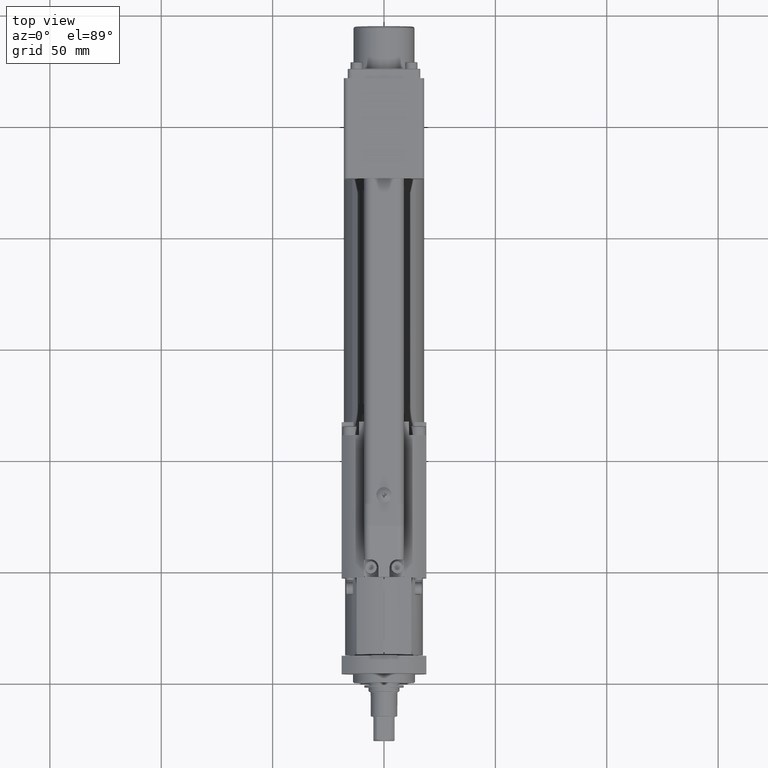
[diagram: clean part render]
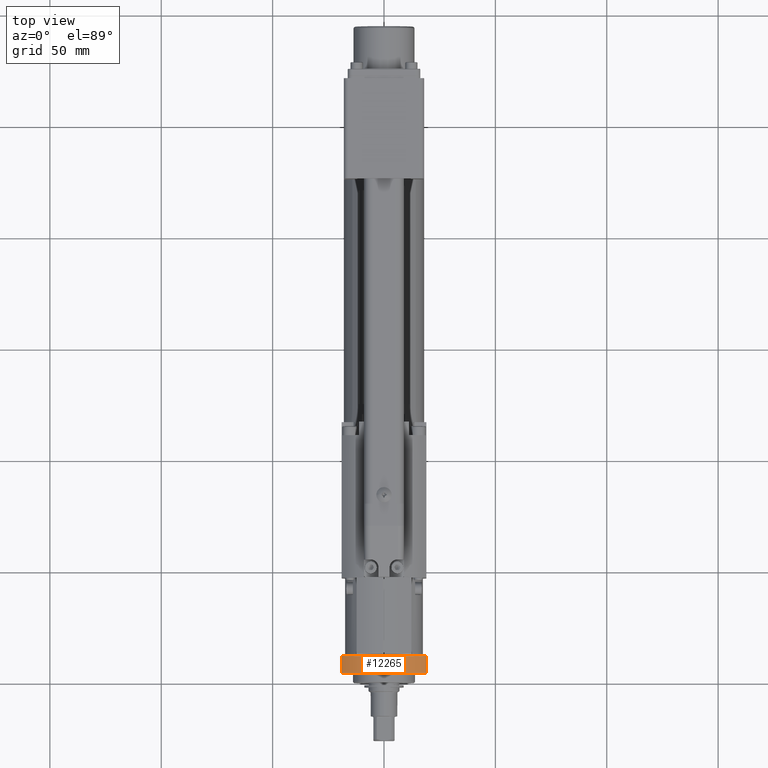
[diagram: same view with one face highlighted and labeled with its STEP entity id]
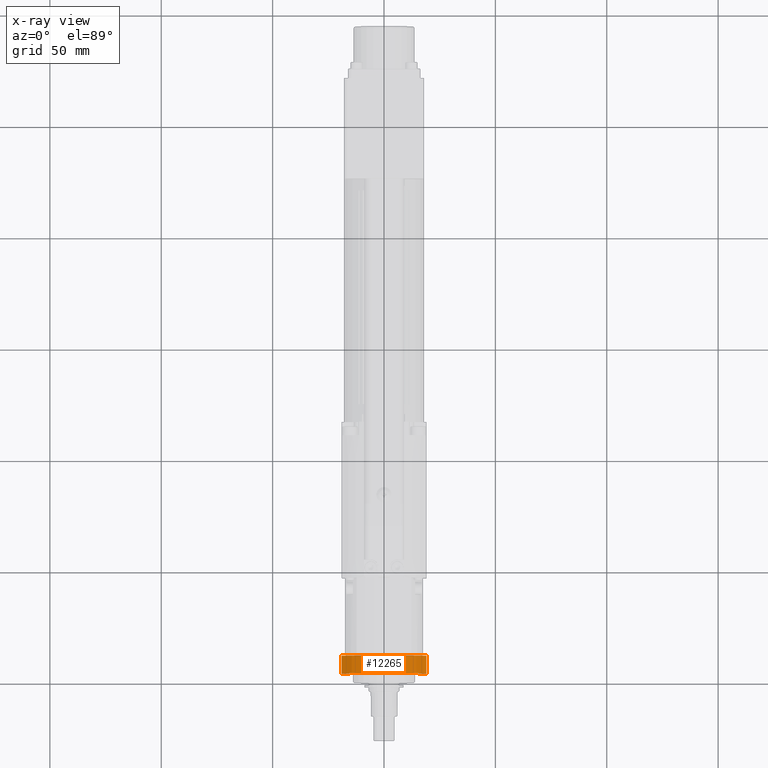
[diagram: x-ray of the same camera — body ghosted, the highlighted face saturated]
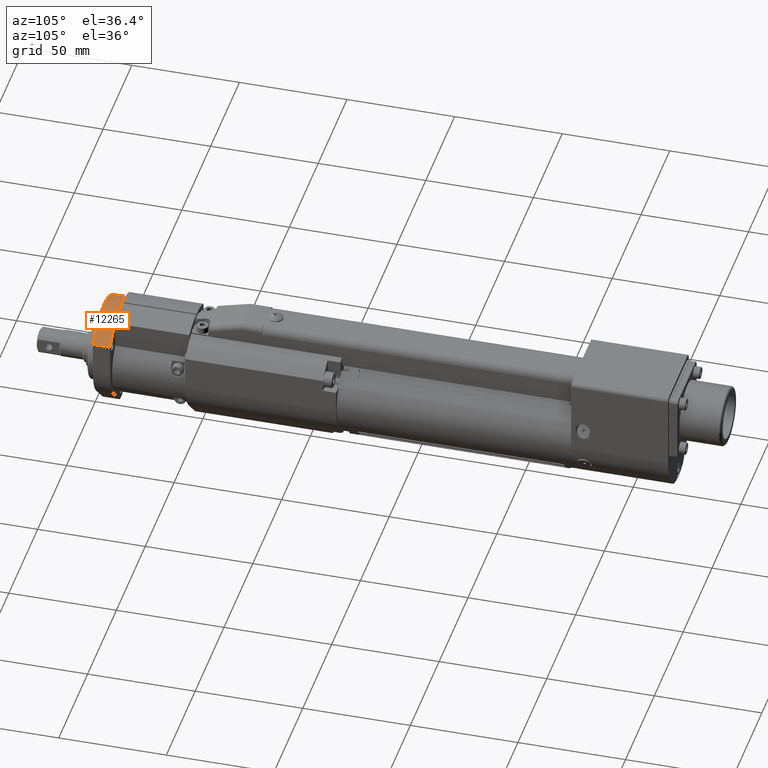
[diagram: same view with one face highlighted and labeled with its STEP entity id]
A machine part, top view. The second image highlights one B-rep face of the part: STEP entity #12265.
The next image is the same camera in x-ray: the body ghosted, the highlighted face saturated — about 0% of this face is hidden behind the body in this view.
A second angle (auxiliary view) of the same face is appended — the face is thin or edge-on in the first view.
In plain terms, the highlighted cylindrical surface (partial cylindrical patch) has radius 25 mm, axis along (0, 1, 0).
Its self-contained STEP definition (entity closure, byte-faithful):
#370=CIRCLE('',#12789,25.);
#618=CIRCLE('',#13252,25.);
#944=CYLINDRICAL_SURFACE('',#13258,25.);
#1299=FACE_OUTER_BOUND('',#2061,.T.);
#2061=EDGE_LOOP('',(#8694,#8695,#8696,#8697));
#2982=LINE('',#19295,#4016);
#2983=LINE('',#19296,#4017);
#4016=VECTOR('',#15415,10.);
#4017=VECTOR('',#15416,10.);
#4676=VERTEX_POINT('',#17625);
#4677=VERTEX_POINT('',#17627);
#5188=VERTEX_POINT('',#19277);
#5189=VERTEX_POINT('',#19279);
#5795=EDGE_CURVE('',#4677,#4676,#370,.T.);
#6493=EDGE_CURVE('',#5188,#5189,#618,.T.);
#6501=EDGE_CURVE('',#5188,#4677,#2982,.T.);
#6502=EDGE_CURVE('',#4676,#5189,#2983,.T.);
#8694=ORIENTED_EDGE('',*,*,#6501,.T.);
#8695=ORIENTED_EDGE('',*,*,#5795,.T.);
#8696=ORIENTED_EDGE('',*,*,#6502,.T.);
#8697=ORIENTED_EDGE('',*,*,#6493,.F.);
#12265=ADVANCED_FACE('',(#1299),#944,.T.);
#12789=AXIS2_PLACEMENT_3D('',#17628,#14087,#14088);
#13252=AXIS2_PLACEMENT_3D('',#19280,#15399,#15400);
#13258=AXIS2_PLACEMENT_3D('',#19294,#15413,#15414);
#14087=DIRECTION('center_axis',(0.,1.,0.));
#14088=DIRECTION('ref_axis',(1.,0.,0.));
#15399=DIRECTION('center_axis',(0.,1.,0.));
#15400=DIRECTION('ref_axis',(1.,0.,0.));
#15413=DIRECTION('center_axis',(0.,1.,0.));
#15414=DIRECTION('ref_axis',(0.,0.,1.));
#15415=DIRECTION('',(0.,-1.,0.));
#15416=DIRECTION('',(0.,1.,0.));
#17625=CARTESIAN_POINT('',(19.,3.99999999999999,16.2480768092719));
#17627=CARTESIAN_POINT('',(-19.,3.99999999999999,16.2480768092719));
#17628=CARTESIAN_POINT('Origin',(0.,3.99999999999999,0.));
#19277=CARTESIAN_POINT('',(-19.,12.,16.2480768092719));
#19279=CARTESIAN_POINT('',(19.,12.,16.2480768092719));
#19280=CARTESIAN_POINT('Origin',(0.,12.,0.));
#19294=CARTESIAN_POINT('Origin',(0.,7.99999999999999,0.));
#19295=CARTESIAN_POINT('',(-19.,7.99999999999999,16.2480768092719));
#19296=CARTESIAN_POINT('',(19.,7.99999999999999,16.2480768092719));